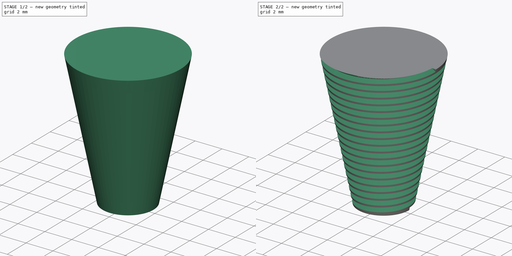
[diagram: build sequence overview — one tinted view per stage of 2, left to right]
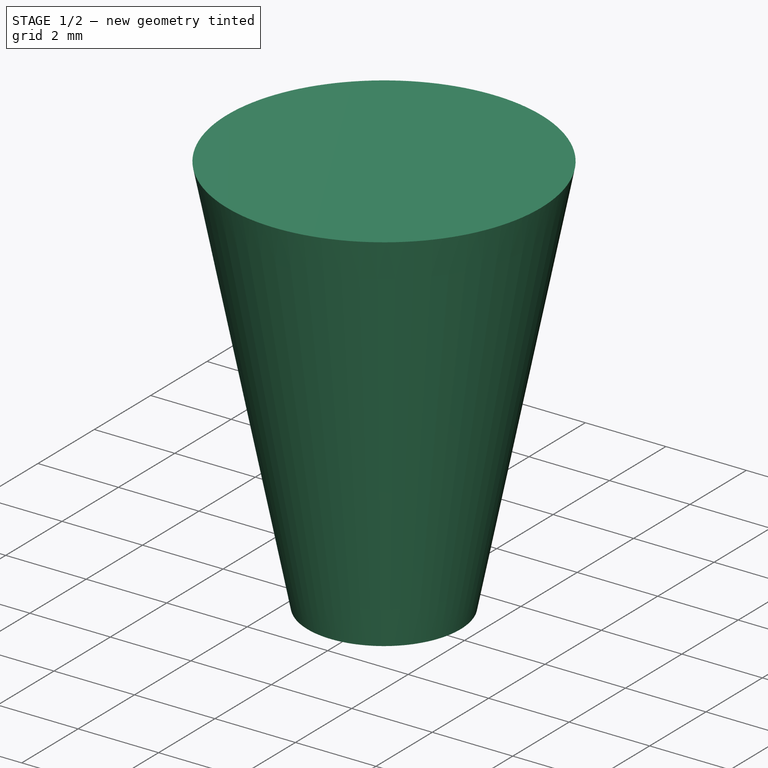
[diagram: stage 1 of 2 — iso view after this stage's code; geometry added in this stage tinted green]
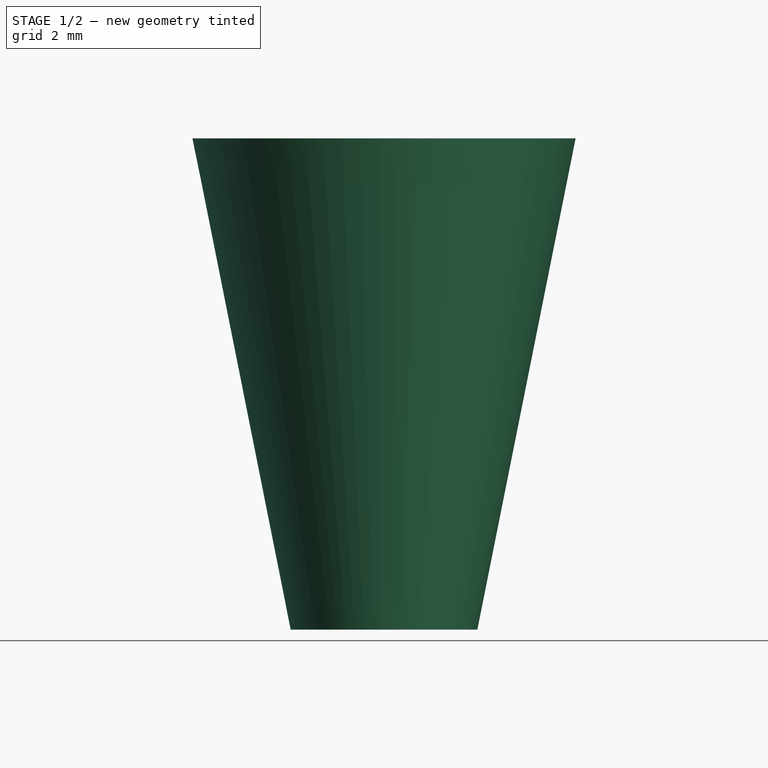
[diagram: stage 1 of 2 — front view after this stage's code; geometry added in this stage tinted green]
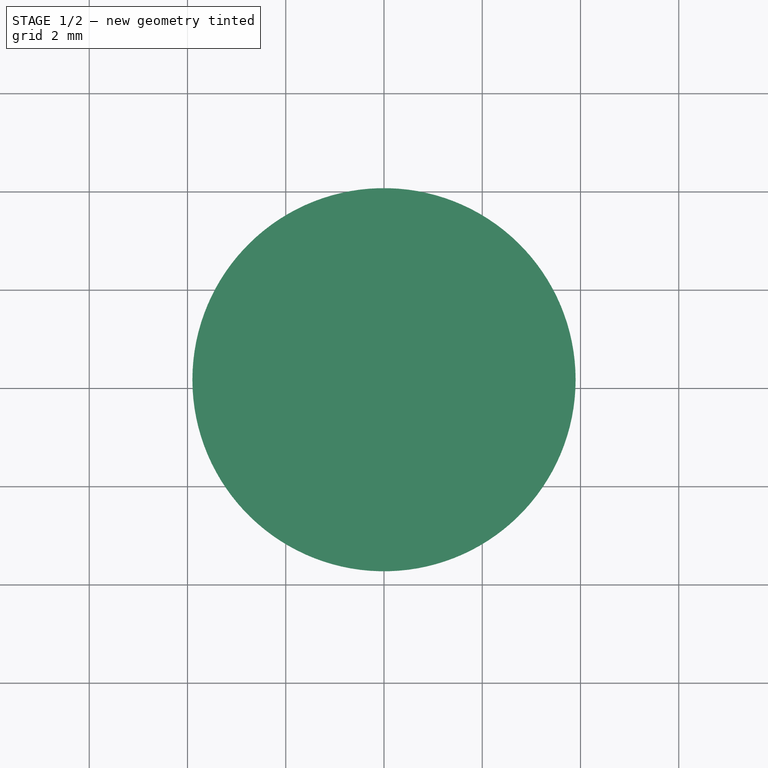
[diagram: stage 1 of 2 — top view after this stage's code; geometry added in this stage tinted green]
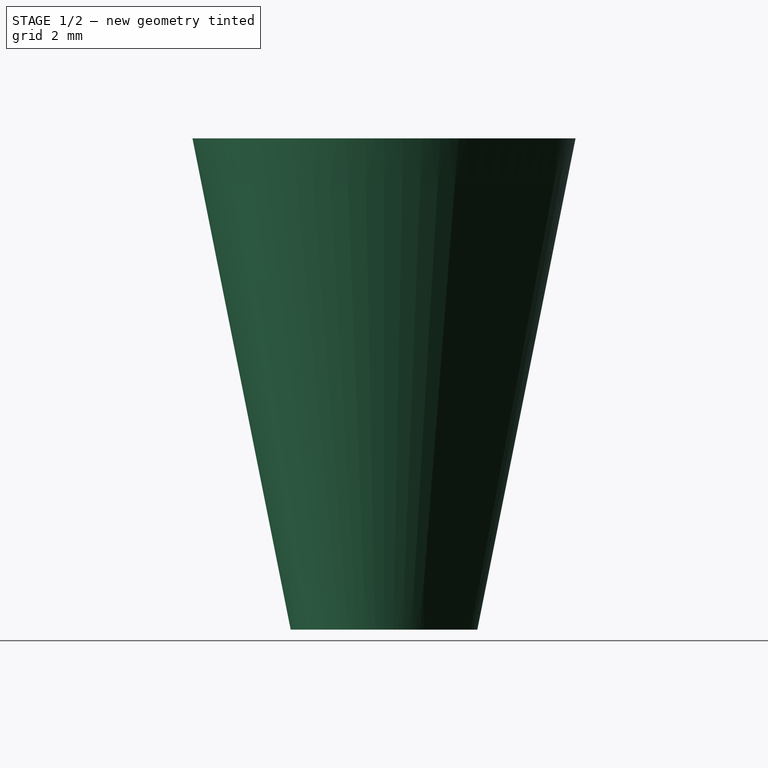
[diagram: stage 1 of 2 — right view after this stage's code; geometry added in this stage tinted green]
FCSTD DOCUMENT  (FreeCAD 0.19R24267 +148 (Git))
Label: cone_thread
License: All rights reserved
LicenseURL: http://en.wikipedia.org/wiki/All_rights_reserved
objects: Sketcher::SketchObject×3, Part::Helix×1, PartDesign::FeatureBase×1, PartDesign::AdditiveLoft×1, PartDesign::ShapeBinder×1, PartDesign::SubtractivePipe×1, PartDesign::Body×1
note: 11 computed .brp shape members not serialized (recipe doc carries the construction recipe); baked Part::Feature solids carry a one-line shape summary decoded from their .brp

FEATURE [Part::Helix] Helix
  Angle = 11.31
  AttacherType = Attacher::AttachEngine3D
  Height = 10
  LocalCoord = 0
  Pitch = 0.5
  Radius = 1.9
  Style = 1
FEATURE [Sketcher::SketchObject] Sketch
  FullyConstrained = false
  Placement = pos=(0,0,0) rot=(1,0,0;1.5708rad)
  sketch-geometry (5):
    g0: LineSegment StartX=1.93922 StartY=0 StartZ=0 EndX=1.30329 EndY=0.127187 EndZ=0
    g1: LineSegment StartX=1.97845 StartY=0.196116 StartZ=0 EndX=1.9 EndY=-0.196116 EndZ=0
    g2: LineSegment StartX=1.58542 StartY=0.121751 StartZ=0 EndX=1.56581 EndY=0.0236932 EndZ=0
    g3: LineSegment StartX=1.58542 StartY=0.121751 StartZ=0 EndX=1.97845 EndY=0.196116 EndZ=0
    g4: LineSegment StartX=1.56581 StartY=0.0236932 StartZ=0 EndX=1.9 EndY=-0.196116 EndZ=0
  constraints (13):
    c: Angle(g0,g-1) = 0.197397
    c: Symmetric(g2,g2,g0)
    c: PointOnObject(g0,g1)
    c: Symmetric(g1,g1,g0)
    c: Distance(g1,g1) = 0.4
    c: Distance(g2,g2) = 0.1
    c: Coincident(g3,g2)
    c: Coincident(g3,g1)
    c: Coincident(g4,g2)
    c: Coincident(g4,g1)
    c: Distance(g2,g1) = 0.4
    c: DistanceX(g-1,g1) = 1.9
    c: PointOnObject(g0,g-1)
FEATURE [PartDesign::FeatureBase] BaseFeature
  BaseFeature = -> Helix
FEATURE [Sketcher::SketchObject] Sketch001
  FullyConstrained = true
  MapMode = 5
  Support = -> [XY_Plane]
  sketch-geometry (1):
    g0: Circle CenterX=0 CenterY=0 CenterZ=0 NormalX=0 NormalY=0 NormalZ=1 AngleXU=0 Radius=1.9
  constraints (2):
    c: Coincident(g0,g-1)
    c: Radius(g0) = 1.9
FEATURE [Sketcher::SketchObject] Sketch002
  AttachmentOffset = pos=(0,0,10) rot=(0,0,1;0rad)
  FullyConstrained = true
  MapMode = 5
  Placement = pos=(0,0,10) rot=(0,0,1;0rad)
  Support = -> [XY_Plane]
  sketch-geometry (1):
    g0: Circle CenterX=0 CenterY=0 CenterZ=0 NormalX=0 NormalY=0 NormalZ=1 AngleXU=0 Radius=3.9
  constraints (2):
    c: Coincident(g0,g-1)
    c: Radius(g0) = 3.9
FEATURE [PartDesign::AdditiveLoft] AdditiveLoft
  BaseFeature = -> BaseFeature
  Closed = false
  Profile = -> Sketch001
  Ruled = false
  Sections = -> [Sketch002]
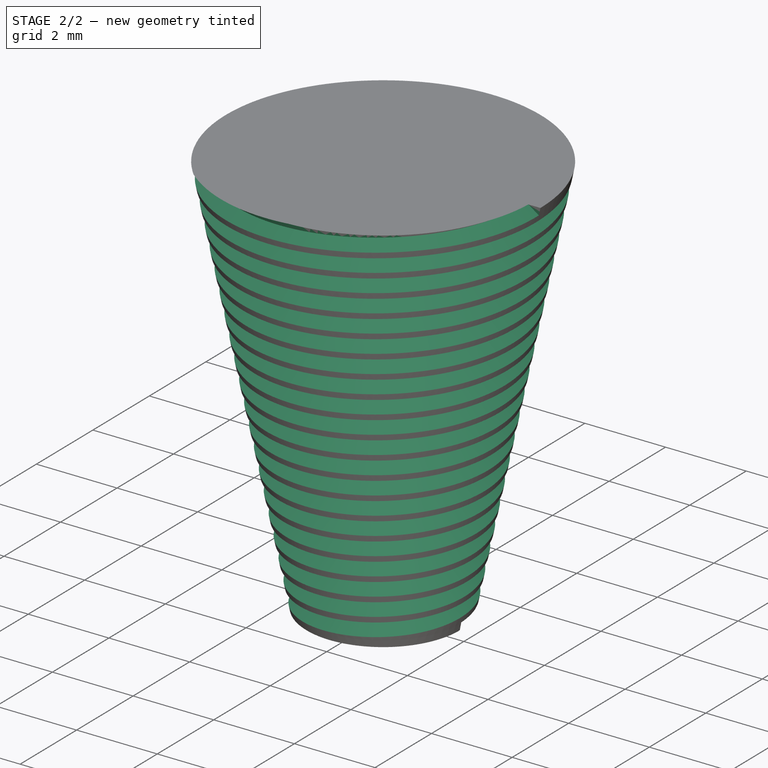
[diagram: stage 2 of 2 — iso view after this stage's code; geometry added in this stage tinted green]
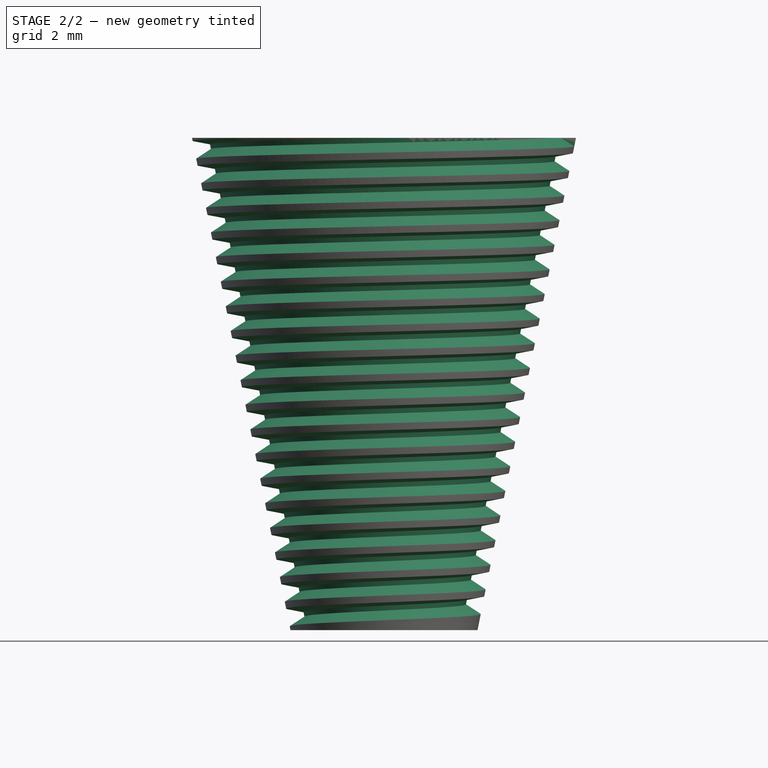
[diagram: stage 2 of 2 — front view after this stage's code; geometry added in this stage tinted green]
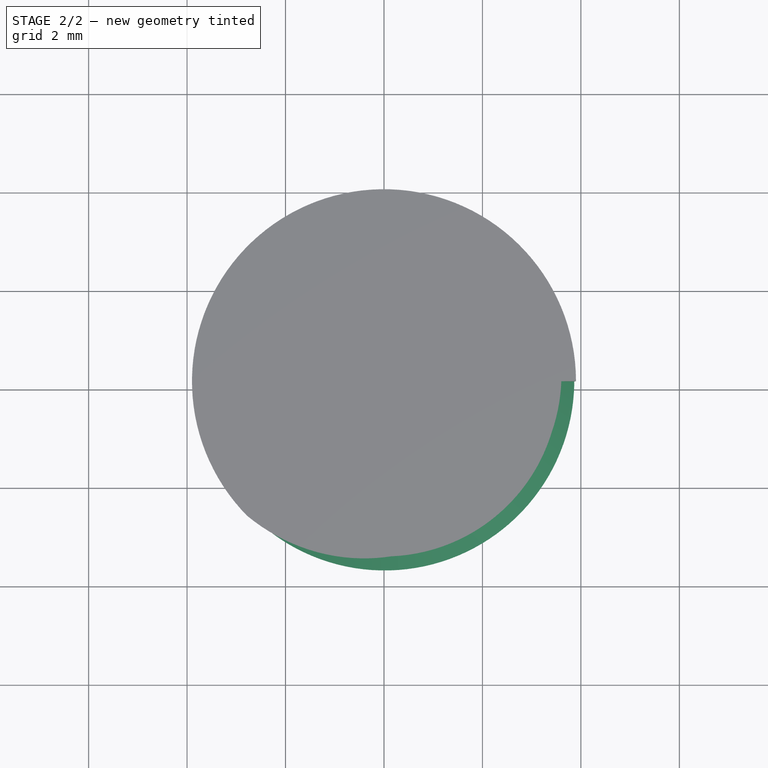
[diagram: stage 2 of 2 — top view after this stage's code; geometry added in this stage tinted green]
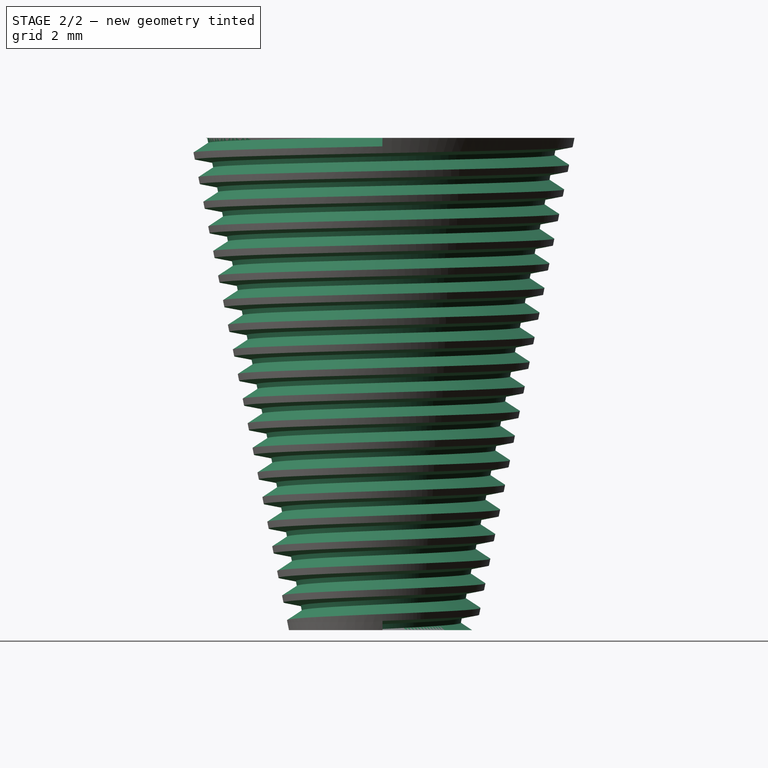
[diagram: stage 2 of 2 — right view after this stage's code; geometry added in this stage tinted green]
FEATURE [PartDesign::ShapeBinder] CopyHelix
  TraceSupport = false
FEATURE [PartDesign::SubtractivePipe] SubtractivePipe
  AuxilleryCurvelinear = true
  AuxillerySpineTangent = false
  BaseFeature = -> AdditiveLoft
  Binormal = (0,0,0)
  Mode = 2
  Profile = -> Sketch
  Spine = -> CopyHelix
  SpineTangent = false
  Transformation = 0
  Transition = 0
FEATURE [PartDesign::Body] Body
  BaseFeature = -> Helix
  Group = -> [BaseFeature,Sketch,Sketch001,Sketch002,AdditiveLoft,SubtractivePipe,CopyHelix]
  Origin = -> Origin
  Tip = -> SubtractivePipe
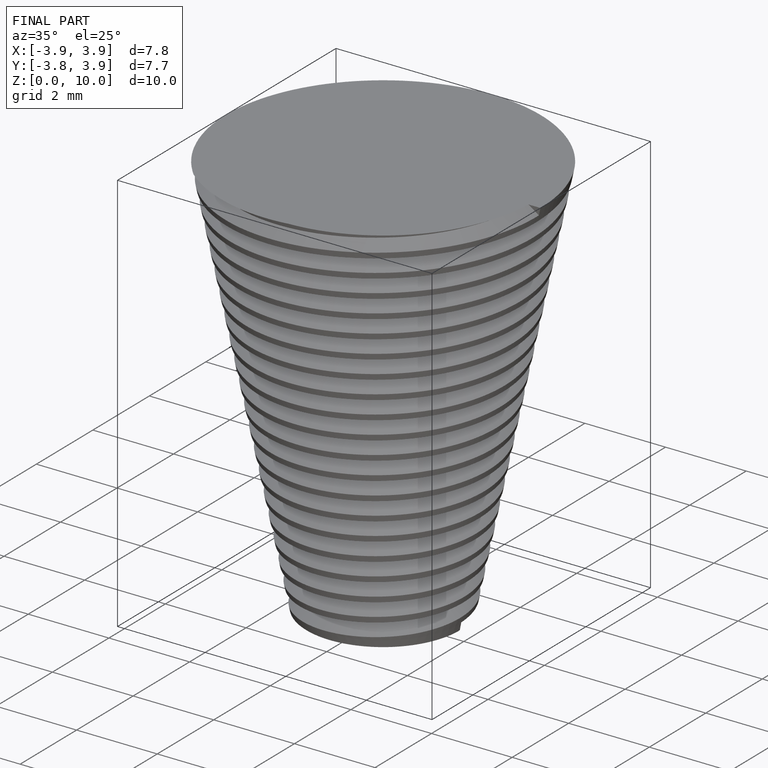
[diagram: finished part — iso view with bounding-box wireframe]
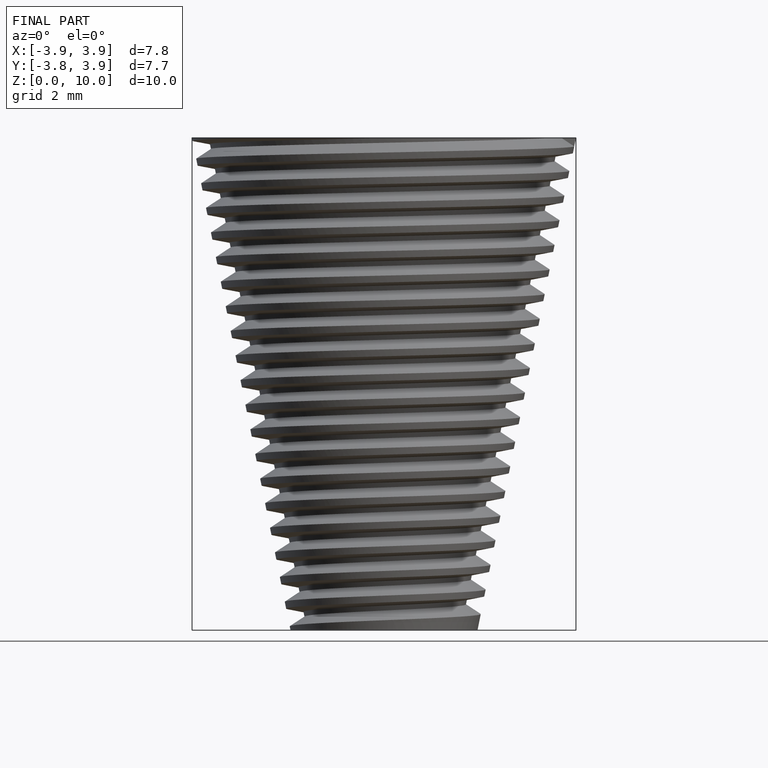
[diagram: finished part — front view with bounding-box wireframe]
